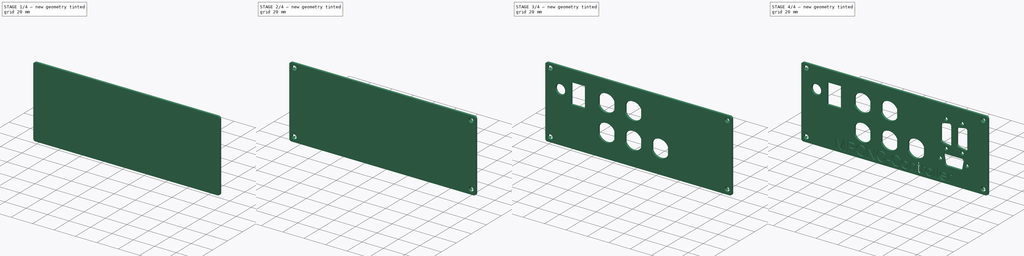
[diagram: build sequence overview — one tinted view per stage of 4, left to right]
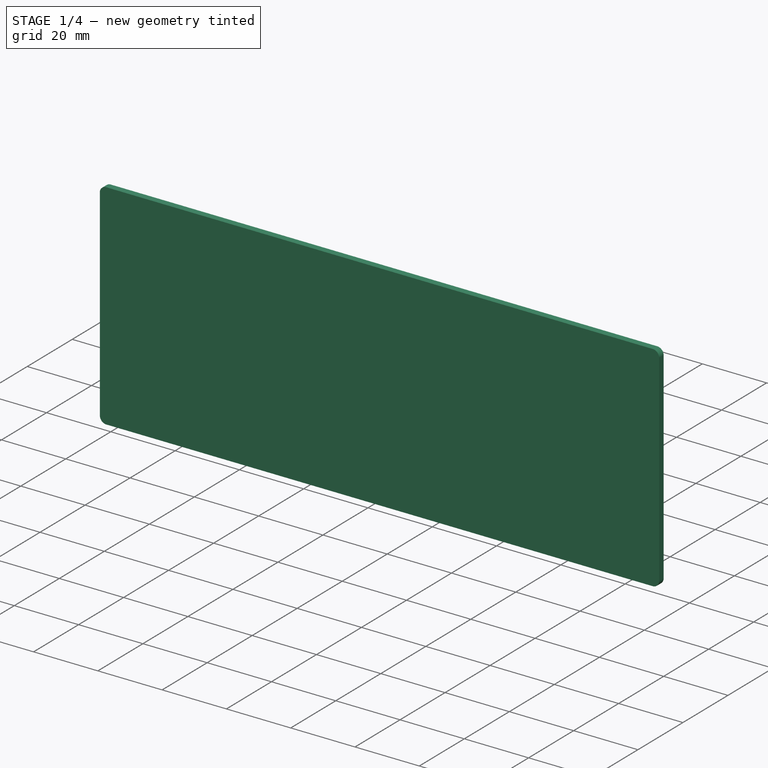
[diagram: stage 1 of 4 — iso view after this stage's code; geometry added in this stage tinted green]
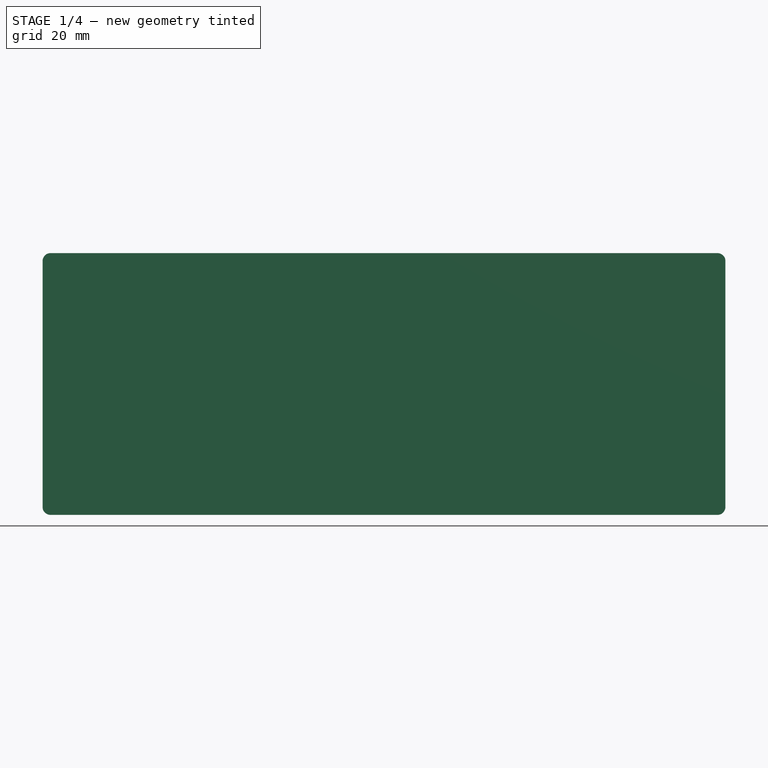
[diagram: stage 1 of 4 — front view after this stage's code; geometry added in this stage tinted green]
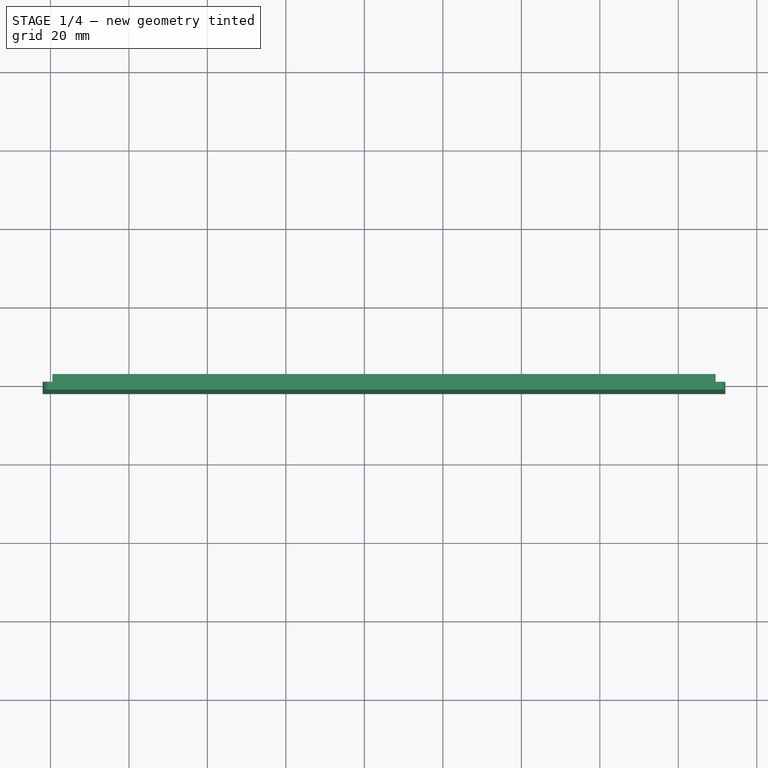
[diagram: stage 1 of 4 — top view after this stage's code; geometry added in this stage tinted green]
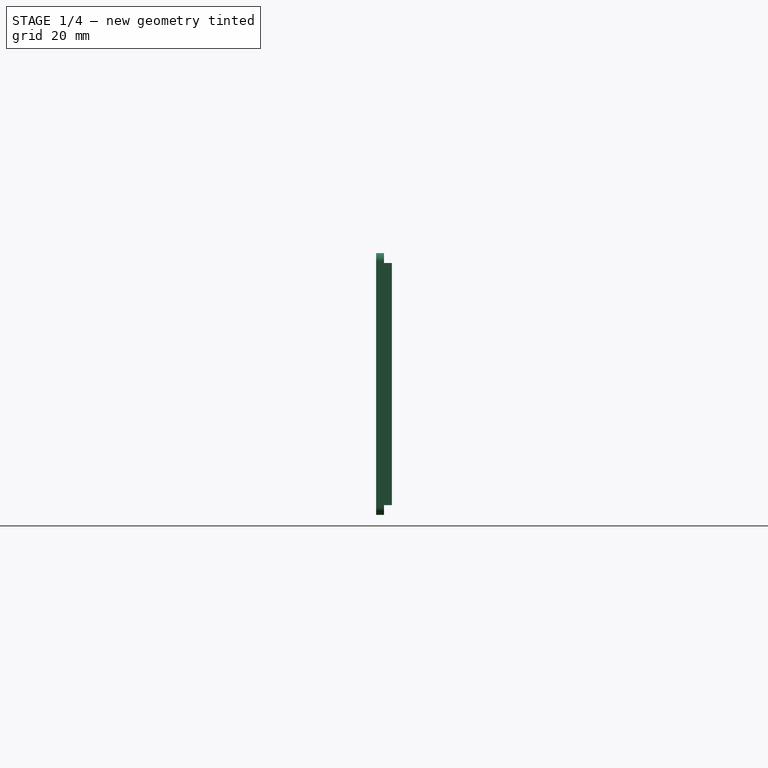
[diagram: stage 1 of 4 — right view after this stage's code; geometry added in this stage tinted green]
FCSTD DOCUMENT  (FreeCAD 0.18R16110 (Git))
Label: MPCNC-Frontplatte
License: All rights reserved
LicenseURL: http://en.wikipedia.org/wiki/All_rights_reserved
objects: Sketcher::SketchObject×6, PartDesign::Pocket×4, Part::FeaturePython×3, PartDesign::Body×3, PartDesign::Pad×2, PartDesign::FeatureBase×2, Part::Feature×1, Part::Box×1, Part::Thickness×1, Part::Cut×1, App::Part×1
note: 30 computed .brp shape members not serialized (recipe doc carries the construction recipe); baked Part::Feature solids carry a one-line shape summary decoded from their .brp

FEATURE [Part::Box] Box001  label="Cube"
  AttacherType = Attacher::AttachEngine3D
  Height = 62.7
  Length = 170
  Placement = pos=(-5,-5,0) rot=(0,0,1;0rad)
  Width = 110
FEATURE [Part::Thickness] Thickness
  Faces = -> Box001 [Face3]
  Intersection = false
  Join = 0
  Mode = 0
  SelfIntersection = false
  Value = 2
FEATURE [Sketcher::SketchObject] Sketch007
  MapMode = 5
  Placement = pos=(0,0,0) rot=(1,0,0;1.5708rad)
  sketch-geometry (8):
    g0: LineSegment StartX=-2 StartY=62.7 StartZ=0 EndX=-2 EndY=0 EndZ=0
    g1: LineSegment StartX=-4e-16 StartY=-2 StartZ=0 EndX=170 EndY=-2 EndZ=0
    g2: LineSegment StartX=172 StartY=-2.5e-15 StartZ=0 EndX=172 EndY=62.7 EndZ=0
    g3: LineSegment StartX=170 StartY=64.7 StartZ=0 EndX=-8.53e-14 EndY=64.7 EndZ=0
    g4: ArcOfCircle CenterX=0 CenterY=0 CenterZ=0 NormalX=0 NormalY=0 NormalZ=1 AngleXU=0 Radius=2 StartAngle=3.14159 EndAngle=4.71239
    g5: ArcOfCircle CenterX=170 CenterY=-2e-15 CenterZ=0 NormalX=0 NormalY=0 NormalZ=1 AngleXU=0 Radius=2 StartAngle=4.71239 EndAngle=6.28319
    g6: ArcOfCircle CenterX=170 CenterY=62.7 CenterZ=0 NormalX=0 NormalY=0 NormalZ=1 AngleXU=0 Radius=2 StartAngle=-1.8e-15 EndAngle=1.5708
    g7: ArcOfCircle CenterX=-9.66e-14 CenterY=62.7 CenterZ=0 NormalX=0 NormalY=0 NormalZ=1 AngleXU=0 Radius=2 StartAngle=1.5708 EndAngle=3.14159
  constraints (19):
    c: Equal(g6,g7)
    c: Radius(g4) = 2
    c: DistanceY(g1,g3) = 66.7
    c: DistanceX(g0,g2) = 174
    c: Coincident(g4,g-1)
    c: Tangent(g1,g4) = -1.5708
    c: Tangent(g0,g4) = -1.5708
    c: Tangent(g3,g6) = -1.5708
    c: Tangent(g2,g6) = -1.5708
    c: Tangent(g1,g5) = -1.5708
    c: Vertical(g2)
    c: Vertical(g0)
    c: Horizontal(g3)
    c: Horizontal(g1)
    c: Tangent(g0,g7) = -1.5708
    c: Tangent(g2,g5) = -1.5708
    c: Tangent(g3,g7) = -1.5708
    c: Equal(g0,g2)
    c: Equal(g3,g1)
FEATURE [PartDesign::Pad] Pad004
  Length = 2
  Length2 = 100
  Placement = pos=(0,0,0) rot=(1,0,0;1.5708rad)
  Profile = -> Sketch007
  Type = 0
  expr: Length = Thickness.Value
FEATURE [Sketcher::SketchObject] Sketch008
  ExternalGeometry = -> [Pad004]
  MapMode = 5
  Placement = pos=(0,1e-16,0) rot=(-1,0,0;1.5708rad)
  Support = -> [Pad004]
  expr: Constraints[11] = Thickness.Value + 0.5mm
  expr: Constraints[10] = Thickness.Value + 0.5mm
  expr: Constraints[8] = Thickness.Value + 0.5mm
  expr: Constraints[9] = Thickness.Value + 0.5mm
  sketch-geometry (4):
    g0: LineSegment StartX=0.5 StartY=-0.5 StartZ=0 EndX=169.5 EndY=-0.5 EndZ=0
    g1: LineSegment StartX=169.5 StartY=-0.5 StartZ=0 EndX=169.5 EndY=-62.2 EndZ=0
    g2: LineSegment StartX=169.5 StartY=-62.2 StartZ=0 EndX=0.5 EndY=-62.2 EndZ=0
    g3: LineSegment StartX=0.5 StartY=-62.2 StartZ=0 EndX=0.5 EndY=-0.5 EndZ=0
  constraints (12):
    c: Coincident(g0,g1)
    c: Coincident(g1,g2)
    c: Coincident(g2,g3)
    c: Coincident(g3,g0)
    c: Horizontal(g0)
    c: Horizontal(g2)
    c: Vertical(g1)
    c: Vertical(g3)
    c: DistanceX(g-4,g0) = 2.5
    c: DistanceY(g0,g-3) = 2.5
    c: DistanceX(g0,g-6) = 2.5
    c: DistanceY(g-5,g2) = 2.5
FEATURE [PartDesign::Pad] Pad005
  BaseFeature = -> Pad004
  Length = 2
  Length2 = 100
  Placement = pos=(0,0,0) rot=(1,0,0;1.5708rad)
  Profile = -> Sketch008
  Type = 0
  expr: Length = Thickness.Value
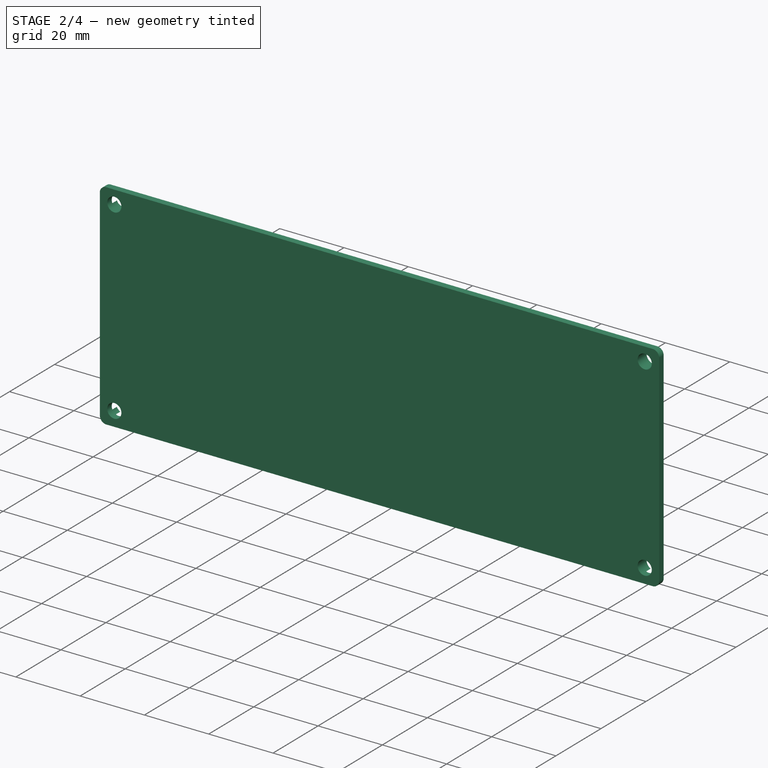
[diagram: stage 2 of 4 — iso view after this stage's code; geometry added in this stage tinted green]
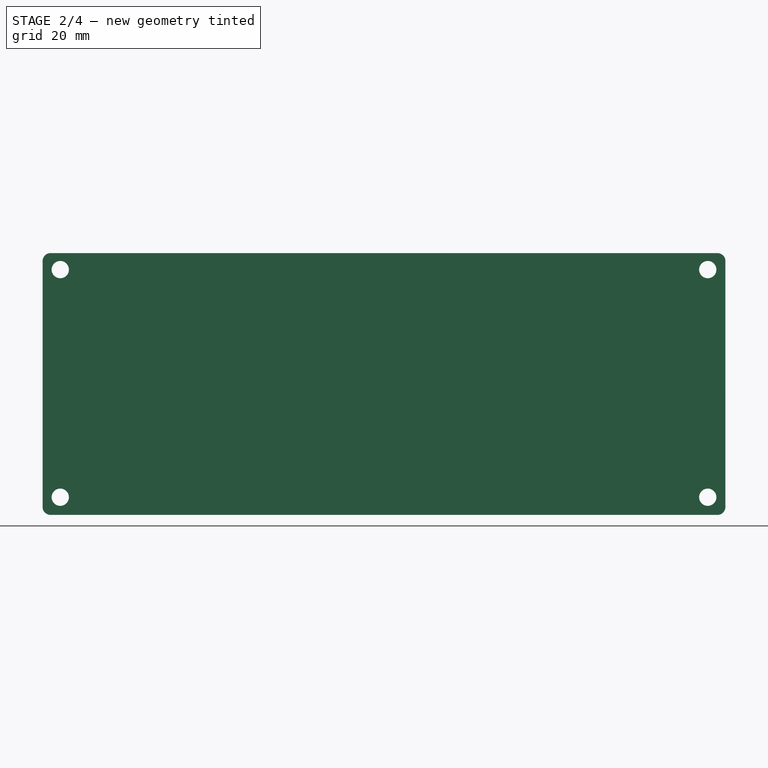
[diagram: stage 2 of 4 — front view after this stage's code; geometry added in this stage tinted green]
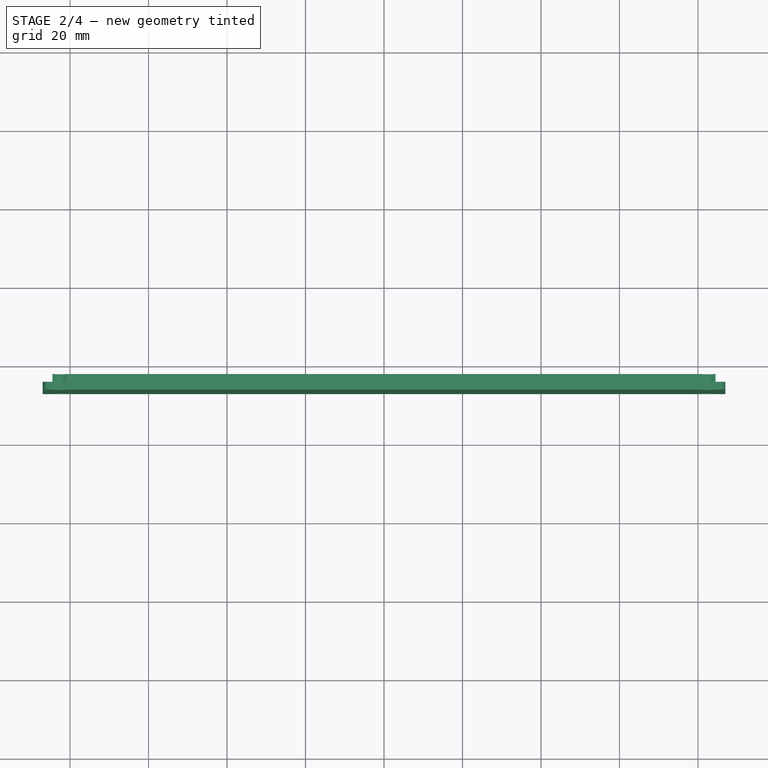
[diagram: stage 2 of 4 — top view after this stage's code; geometry added in this stage tinted green]
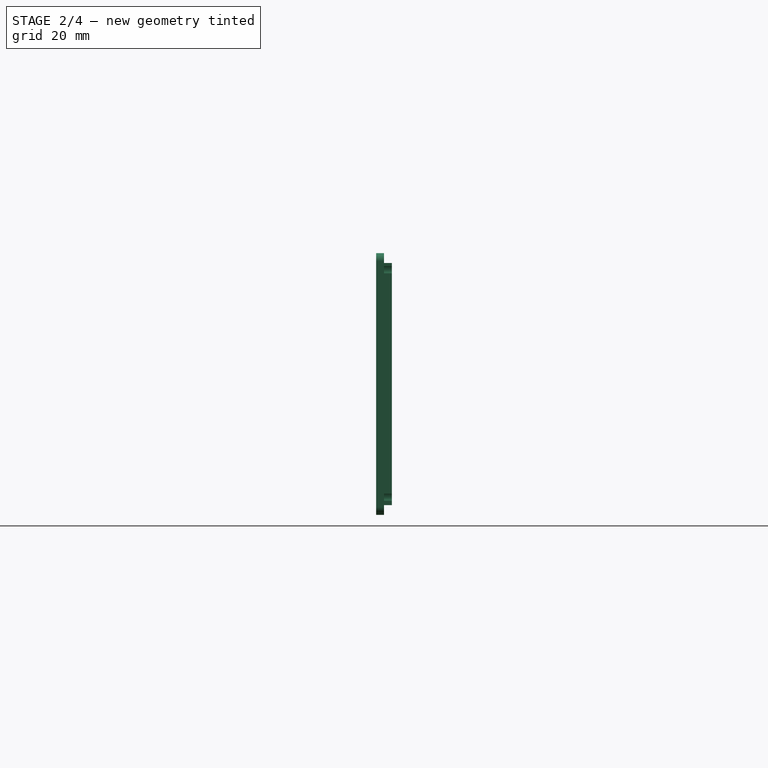
[diagram: stage 2 of 4 — right view after this stage's code; geometry added in this stage tinted green]
FEATURE [Sketcher::SketchObject] Sketch009
  ExternalGeometry = -> [Pad005]
  MapMode = 5
  Placement = pos=(0,-2,9e-16) rot=(1,0,0;1.5708rad)
  Support = -> [Pad005]
  expr: Constraints[11] = Constraints.Schraublochabstand
  expr: Constraints[8] = Constraints.Schraublochabstand
  expr: Constraints[7] = Constraints.Schraublochabstand
  expr: Constraints[10] = Constraints.Schraublochabstand
  expr: Constraints[2] = Constraints.Schraublochabstand
  sketch-geometry (4):
    g0: Circle CenterX=2.5 CenterY=2.5 CenterZ=0 NormalX=0 NormalY=0 NormalZ=1 AngleXU=0 Radius=2.2
    g1: Circle CenterX=2.5 CenterY=60.5 CenterZ=0 NormalX=0 NormalY=0 NormalZ=1 AngleXU=0 Radius=2.2
    g2: Circle CenterX=167.5 CenterY=60.5 CenterZ=0 NormalX=0 NormalY=0 NormalZ=1 AngleXU=0 Radius=2.2
    g3: Circle CenterX=167.5 CenterY=2.5 CenterZ=0 NormalX=0 NormalY=0 NormalZ=1 AngleXU=0 Radius=2.2
  constraints (12):
    c: Radius(g0) = 2.2
    c: DistanceX(g-3,g0) = 4.5  'Schraublochabstand'
    c: DistanceY(g-4,g0) = 4.5
    c: Equal(g0,g3)
    c: Equal(g3,g2)
    c: Equal(g2,g1)
    c: DistanceY(g1,g-5) = 4.2
    c: DistanceX(g-3,g1) = 4.5
    c: DistanceX(g2,g-6) = 4.5
    c: DistanceY(g2,g-5) = 4.2
    c: DistanceY(g-4,g3) = 4.5
    c: DistanceX(g3,g-6) = 4.5
FEATURE [PartDesign::Pocket] Pocket002
  BaseFeature = -> Pad005
  Length = 5
  Length2 = 100
  Placement = pos=(0,0,0) rot=(1,0,0;1.5708rad)
  Profile = -> Sketch009
  Type = 1
FEATURE [Sketcher::SketchObject] Sketch012
  ExternalGeometry = -> [Pocket002]
  MapMode = 5
  Placement = pos=(0,2,-1.8e-15) rot=(-1,0,0;1.5708rad)
  Support = -> [Pocket002]
  expr: Constraints[11] = Constraints.Frontplatteinsertabstand
  expr: Constraints[10] = Constraints.Frontplatteinsertabstand
  expr: Constraints[9] = Constraints.Frontplatteinsertabstand
  sketch-geometry (4):
    g0: LineSegment StartX=5.5 StartY=-5.5 StartZ=0 EndX=164.5 EndY=-5.5 EndZ=0
    g1: LineSegment StartX=164.5 StartY=-5.5 StartZ=0 EndX=164.5 EndY=-57.2 EndZ=0
    g2: LineSegment StartX=164.5 StartY=-57.2 StartZ=0 EndX=5.5 EndY=-57.2 EndZ=0
    g3: LineSegment StartX=5.5 StartY=-57.2 StartZ=0 EndX=5.5 EndY=-5.5 EndZ=0
  constraints (12):
    c: Coincident(g0,g1)
    c: Coincident(g1,g2)
    c: Coincident(g2,g3)
    c: Coincident(g3,g0)
    c: Horizontal(g0)
    c: Horizontal(g2)
    c: Vertical(g1)
    c: Vertical(g3)
    c: DistanceX(g-4,g2) = 5  'Frontplatteinsertabstand'
    c: DistanceY(g-6,g2) = 5
    c: DistanceY(g0,g-3) = 5
    c: DistanceX(g1,g-5) = 5
FEATURE [PartDesign::Pocket] Pocket005
  BaseFeature = -> Pocket002
  Length = 2
  Length2 = 100
  Placement = pos=(0,0,0) rot=(1,0,0;1.5708rad)
  Profile = -> Sketch012
  Type = 0
FEATURE [PartDesign::Body] Body003  label="Grund-Frontplatte"
  Group = -> [Sketch007,Pad004,Sketch008,Pad005,Sketch009,Pocket002,Sketch012,Pocket005]
  Origin = -> Origin008
  Placement = pos=(-5,-5,0) rot=(0,0,1;0rad)
  Tip = -> Pocket005
FEATURE [Part::FeaturePython] Clone049  label="Grund-Frontplatte001"  # Draft clone (typed FeaturePython)
  AttacherType = Attacher::AttachEngine3D
  Fuse = false
  Objects = -> [Body003]
  Placement = pos=(-5,-5,0) rot=(0,0,1;0rad)
  Scale = (1,1,1)
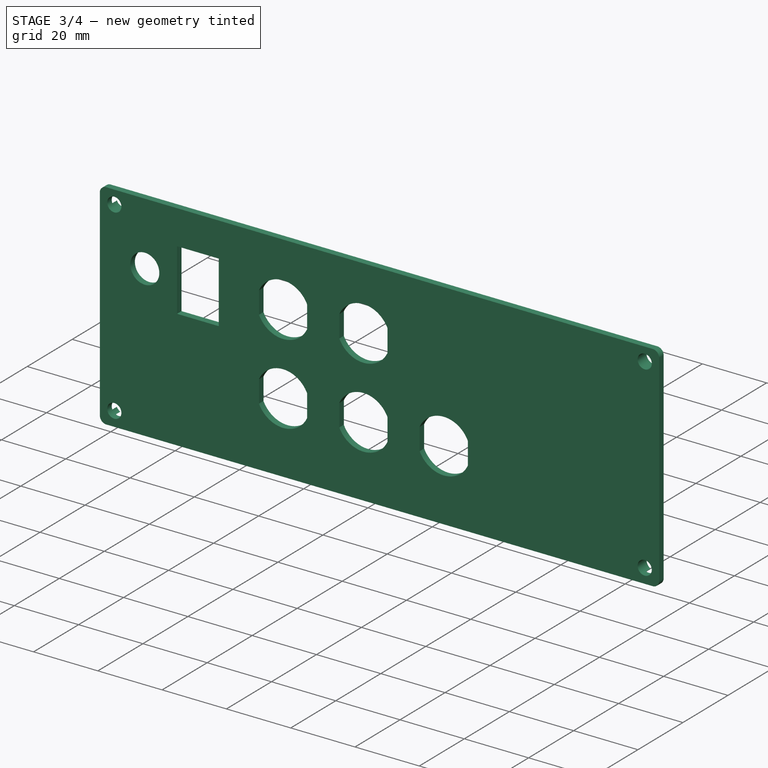
[diagram: stage 3 of 4 — iso view after this stage's code; geometry added in this stage tinted green]
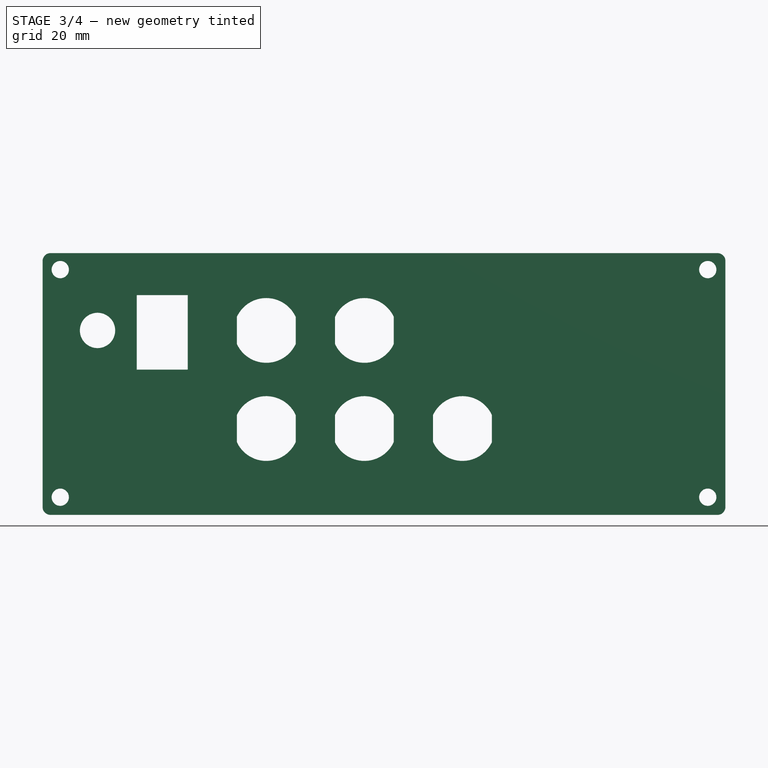
[diagram: stage 3 of 4 — front view after this stage's code; geometry added in this stage tinted green]
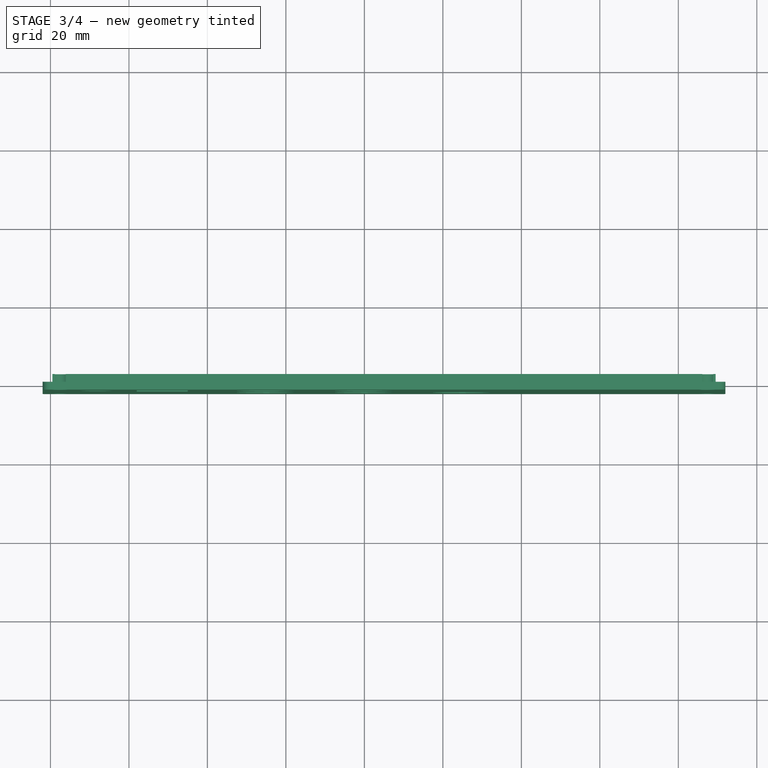
[diagram: stage 3 of 4 — top view after this stage's code; geometry added in this stage tinted green]
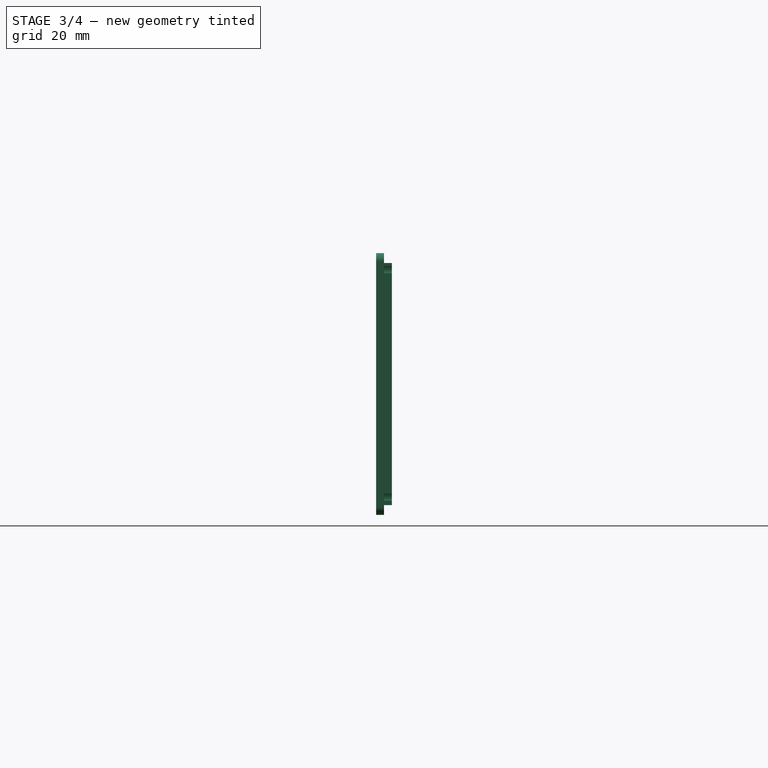
[diagram: stage 3 of 4 — right view after this stage's code; geometry added in this stage tinted green]
FEATURE [PartDesign::FeatureBase] BaseFeature
  BaseFeature = -> Clone049
FEATURE [Sketcher::SketchObject] Sketch010
  MapMode = 5
  Placement = pos=(0,-2,9e-16) rot=(1,0,0;1.5708rad)
  Support = -> [BaseFeature]
  sketch-geometry (35):
    g0: LineSegment StartX=22 StartY=54 StartZ=0 EndX=35 EndY=54 EndZ=0
    g1: LineSegment StartX=35 StartY=54 StartZ=0 EndX=35 EndY=35 EndZ=0
    g2: LineSegment StartX=35 StartY=35 StartZ=0 EndX=22 EndY=35 EndZ=0
    g3: LineSegment StartX=22 StartY=35 StartZ=0 EndX=22 EndY=54 EndZ=0
    g4: Circle CenterX=12 CenterY=45 CenterZ=0 NormalX=0 NormalY=0 NormalZ=1 AngleXU=0 Radius=4.5
    g5: LineSegment [constr] StartX=55 StartY=45 StartZ=0 EndX=105 EndY=45 EndZ=0
    g6: LineSegment [constr] StartX=105 StartY=45 StartZ=0 EndX=105 EndY=20 EndZ=0
    g7: LineSegment [constr] StartX=105 StartY=20 StartZ=0 EndX=55 EndY=20 EndZ=0
    g8: LineSegment [constr] StartX=55 StartY=20 StartZ=0 EndX=55 EndY=45 EndZ=0
    g9: LineSegment [constr] StartX=80 StartY=45 StartZ=0 EndX=80 EndY=20 EndZ=0
    g10: LineSegment StartX=62.5 StartY=23.4369 StartZ=0 EndX=62.5 EndY=16.5631 EndZ=0
    g11: LineSegment StartX=47.5 StartY=23.4369 StartZ=0 EndX=47.5 EndY=16.5631 EndZ=0
    g12: LineSegment [constr] StartX=47.5 StartY=23.4369 StartZ=0 EndX=62.5 EndY=23.4369 EndZ=0
    g13: ArcOfCircle CenterX=55 CenterY=20 CenterZ=0 NormalX=0 NormalY=0 NormalZ=1 AngleXU=0 Radius=8.25 StartAngle=0.4297 EndAngle=2.71189
    g14: ArcOfCircle CenterX=55 CenterY=20 CenterZ=0 NormalX=0 NormalY=0 NormalZ=1 AngleXU=0 Radius=8.25 StartAngle=3.57129 EndAngle=5.85349
    g15: ArcOfCircle CenterX=55 CenterY=45 CenterZ=0 NormalX=0 NormalY=0 NormalZ=1 AngleXU=0 Radius=8.25 StartAngle=3.57129 EndAngle=5.85349
    g16: ArcOfCircle CenterX=55 CenterY=45 CenterZ=0 NormalX=0 NormalY=0 NormalZ=1 AngleXU=0 Radius=8.25 StartAngle=0.4297 EndAngle=2.71189
    g17: LineSegment StartX=47.5 StartY=48.4369 StartZ=0 EndX=47.5 EndY=41.5631 EndZ=0
    g18: LineSegment StartX=62.5 StartY=48.4369 StartZ=0 EndX=62.5 EndY=41.5631 EndZ=0
    g19: LineSegment [constr] StartX=47.5 StartY=48.4369 StartZ=0 EndX=62.5 EndY=48.4369 EndZ=0
    g20: ArcOfCircle CenterX=80 CenterY=20 CenterZ=0 NormalX=0 NormalY=0 NormalZ=1 AngleXU=0 Radius=8.25 StartAngle=0.4297 EndAngle=2.71189
    g21: LineSegment StartX=87.5 StartY=23.4369 StartZ=0 EndX=87.5 EndY=16.5631 EndZ=0
    g22: LineSegment StartX=72.5 StartY=23.4369 StartZ=0 EndX=72.5 EndY=16.5631 EndZ=0
    g23: LineSegment [constr] StartX=72.5 StartY=23.4369 StartZ=0 EndX=87.5 EndY=23.4369 EndZ=0
    g24: ArcOfCircle CenterX=80 CenterY=20 CenterZ=0 NormalX=0 NormalY=0 NormalZ=1 AngleXU=0 Radius=8.25 StartAngle=3.57129 EndAngle=5.85349
    g25: LineSegment StartX=97.5 StartY=23.4369 StartZ=0 EndX=97.5 EndY=16.5631 EndZ=0
    g26: ArcOfCircle CenterX=105 CenterY=20 CenterZ=0 NormalX=0 NormalY=0 NormalZ=1 AngleXU=0 Radius=8.25 StartAngle=0.4297 EndAngle=2.71189
    g27: LineSegment [constr] StartX=97.5 StartY=23.4369 StartZ=0 EndX=112.5 EndY=23.4369 EndZ=0
    g28: LineSegment StartX=112.5 StartY=23.4369 StartZ=0 EndX=112.5 EndY=16.5631 EndZ=0
    g29: ArcOfCircle CenterX=105 CenterY=20 CenterZ=0 NormalX=0 NormalY=0 NormalZ=1 AngleXU=0 Radius=8.25 StartAngle=3.57129 EndAngle=5.85349
    g30: LineSegment StartX=72.5 StartY=48.4369 StartZ=0 EndX=72.5 EndY=41.5631 EndZ=0
    g31: LineSegment [constr] StartX=72.5 StartY=48.4369 StartZ=0 EndX=87.5 EndY=48.4369 EndZ=0
    g32: ArcOfCircle CenterX=80 CenterY=45 CenterZ=0 NormalX=0 NormalY=0 NormalZ=1 AngleXU=0 Radius=8.25 StartAngle=0.4297 EndAngle=2.71189
    g33: LineSegment StartX=87.5 StartY=48.4369 StartZ=0 EndX=87.5 EndY=41.5631 EndZ=0
    g34: ArcOfCircle CenterX=80 CenterY=45 CenterZ=0 NormalX=0 NormalY=0 NormalZ=1 AngleXU=0 Radius=8.25 StartAngle=3.57129 EndAngle=5.85349
  constraints (100):
    c: Coincident(g0,g1)
    c: Coincident(g1,g2)
    c: Coincident(g2,g3)
    c: Coincident(g3,g0)
    c: Horizontal(g0)
    c: Horizontal(g2)
    c: Vertical(g1)
    c: Vertical(g3)
    c: DistanceX(g0,g0) = 13
    c: DistanceY(g1,g1) = 19
    c: Radius(g4) = 4.5
    c: Coincident(g6,g7)
    c: Coincident(g7,g8)
    c: Coincident(g8,g5)
    c: Horizontal(g5)
    c: Horizontal(g7)
    c: Vertical(g6)
    c: Vertical(g8)
    c: DistanceY(g8,g8) = 25
    c: DistanceX(g7,g7) = 50
    c: DistanceX(g2) = 22
    c: DistanceY(g2) = 35
    c: DistanceX(g4) = 12
    c: DistanceY(g4) = 45
    c: Vertical(g10)
    c: Vertical(g11)
    c: Coincident(g12,g11)
    c: Coincident(g12,g10)
    c: Horizontal(g12)
    c: Coincident(g13,g11)
    c: Coincident(g13,g10)
    c: Coincident(g14,g11)
    c: Coincident(g14,g10)
    c: Equal(g13,g14)
    c: Radius(g13) = 8.25
    c: DistanceX(g12,g12) = 15
    c: Coincident(g5,g6)  'mitte'
    c: PointOnObject(g9,g7)
    c: PointOnObject(g9,g5)
    c: Symmetric(g6,g7,g9)
    c: DistanceX(g7) = 55
    c: DistanceY(g7) = 20
    c: Coincident(g13,g14)
    c: Coincident(g13,g7)
    c: Vertical(g18)
    c: Vertical(g17)
    c: Coincident(g19,g17)
    c: Coincident(g19,g18)
    c: Horizontal(g19)
    c: Coincident(g16,g17)
    c: Coincident(g16,g18)
    c: Coincident(g15,g17)
    c: Coincident(g15,g18)
    c: Equal(g16,g15)
    c: Equal(g13,g16) = 8.25
    c: Equal(g12,g19) = 15
    c: Coincident(g16,g15)
    c: Coincident(g15,g5)
    c: Vertical(g21)
    c: Vertical(g22)
    c: Coincident(g23,g22)
    c: Coincident(g23,g21)
    c: Horizontal(g23)
    c: Coincident(g20,g22)
    c: Coincident(g20,g21)
    c: Coincident(g24,g22)
    c: Coincident(g24,g21)
    c: Equal(g20,g24)
    c: Equal(g13,g20) = 8.25
    c: Equal(g12,g23) = 15
    c: Coincident(g20,g24)
    c: Coincident(g20,g9)
    c: Vertical(g28)
    c: Vertical(g25)
    c: Coincident(g27,g25)
    c: Coincident(g27,g28)
    c: Horizontal(g27)
    c: Coincident(g26,g25)
    c: Coincident(g26,g28)
    c: Coincident(g29,g25)
    c: Coincident(g29,g28)
    c: Equal(g26,g29)
    c: Equal(g13,g26) = 8.25
    c: Equal(g12,g27) = 15
    c: Coincident(g26,g29)
    c: Coincident(g26,g6)
    c: Vertical(g33)
    c: Vertical(g30)
    c: Coincident(g31,g30)
    c: Coincident(g31,g33)
    c: Horizontal(g31)
    c: Coincident(g32,g30)
    c: Coincident(g32,g33)
    c: Coincident(g34,g30)
    c: Coincident(g34,g33)
    c: Equal(g32,g34)
    c: Equal(g13,g32) = 8.25
    c: Equal(g12,g31) = 15
    c: Coincident(g32,g34)
    c: Coincident(g32,g9)
FEATURE [PartDesign::Pocket] Pocket003
  BaseFeature = -> BaseFeature
  Length = 5
  Length2 = 100
  Profile = -> Sketch010
  Type = 1
FEATURE [PartDesign::Body] Body004  label="Schalter und GX-16"
  BaseFeature = -> Clone049
  Group = -> [BaseFeature,Sketch010,Pocket003]
  Origin = -> Origin009
  Placement = pos=(-5,-5,0) rot=(0,0,1;0rad)
  Tip = -> Pocket003
FEATURE [Part::FeaturePython] Clone050  label="Klon-Schalter und GX16"  # Draft clone (typed FeaturePython)
  AttacherType = Attacher::AttachEngine3D
  Fuse = false
  Objects = -> [Pocket003]
  Scale = (1,1,1)
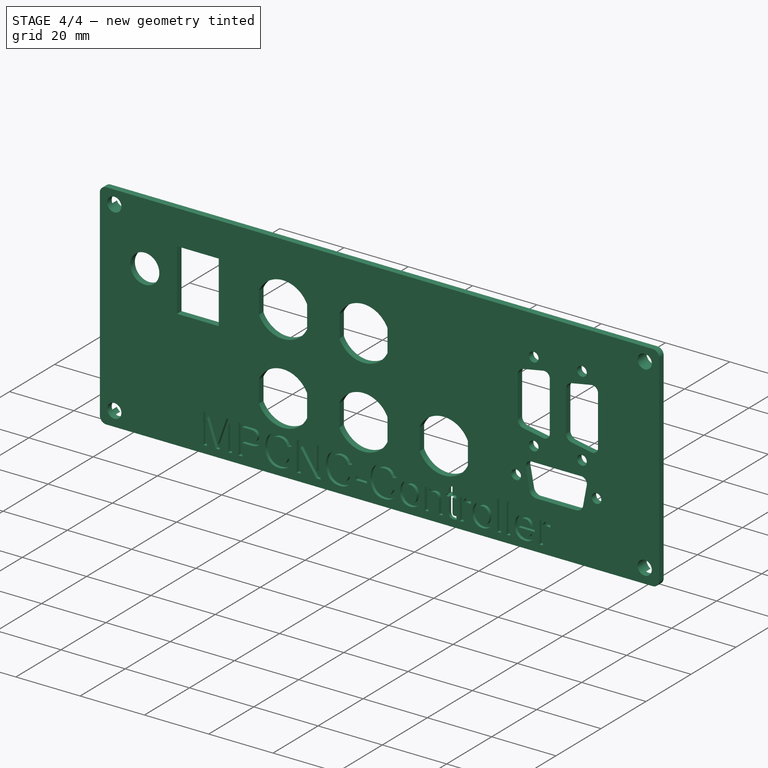
[diagram: stage 4 of 4 — iso view after this stage's code; geometry added in this stage tinted green]
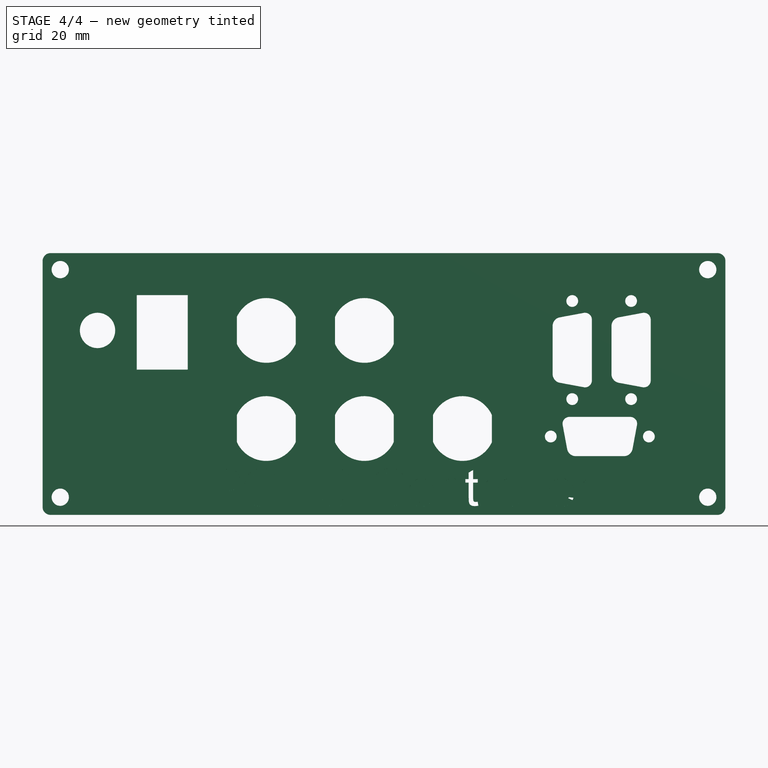
[diagram: stage 4 of 4 — front view after this stage's code; geometry added in this stage tinted green]
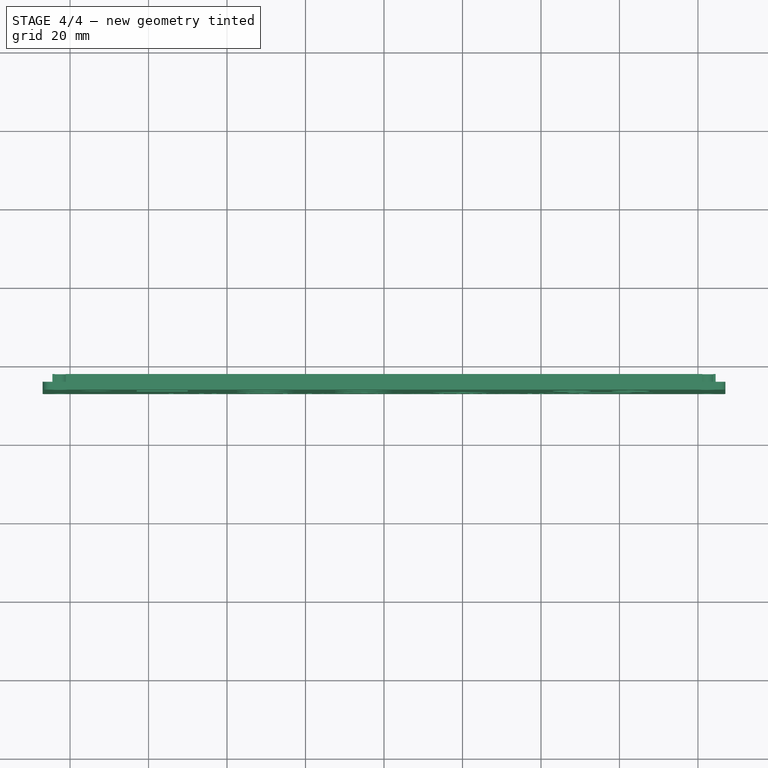
[diagram: stage 4 of 4 — top view after this stage's code; geometry added in this stage tinted green]
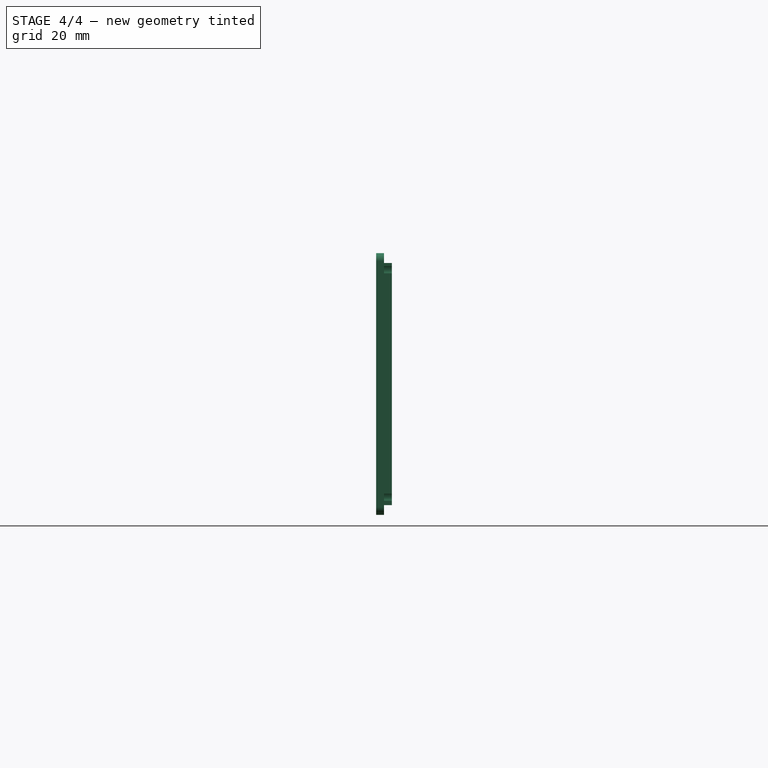
[diagram: stage 4 of 4 — right view after this stage's code; geometry added in this stage tinted green]
FEATURE [Part::Feature] Fusion004011  label="Schrift-Hilfskörper"
  shape: bbox 108.2 x 9.673 x 10 mm, 274 faces, 16 solids (baked)
FEATURE [Part::FeaturePython] Clone051  label="Schrift-Hilfskörper001"  # Draft clone (typed FeaturePython)
  AttacherType = Attacher::AttachEngine3D
  Fuse = false
  Objects = -> [Fusion004011]
  Placement = pos=(25,-6,10) rot=(1,0,0;1.5708rad)
  Scale = (1,1,1)
FEATURE [PartDesign::FeatureBase] BaseFeature001
  BaseFeature = -> Clone050
FEATURE [Sketcher::SketchObject] Sketch011
  MapMode = 5
  Placement = pos=(0,-2,9e-16) rot=(1,0,0;1.5708rad)
  Support = -> [BaseFeature001]
  sketch-geometry (57):
    g0: LineSegment [constr] StartX=127.5 StartY=22.967 StartZ=0 EndX=152.5 EndY=22.967 EndZ=0
    g1: LineSegment [constr] StartX=152.5 StartY=22.967 StartZ=0 EndX=152.5 EndY=12.967 EndZ=0
    g2: LineSegment [constr] StartX=152.5 StartY=12.967 StartZ=0 EndX=127.5 EndY=12.967 EndZ=0
    g3: LineSegment [constr] StartX=127.5 StartY=12.967 StartZ=0 EndX=127.5 EndY=22.967 EndZ=0
    g4: LineSegment [constr] StartX=127.5 StartY=17.967 StartZ=0 EndX=152.5 EndY=17.967 EndZ=0
    g5: LineSegment [constr] StartX=140 StartY=22.967 StartZ=0 EndX=140 EndY=12.967 EndZ=0
    g6: LineSegment StartX=130.53 StartY=20.8968 StartZ=0 EndX=131.663 EndY=14.8054 EndZ=0
    g7: LineSegment StartX=149.47 StartY=20.8968 StartZ=0 EndX=148.337 EndY=14.8054 EndZ=0
    g8: LineSegment StartX=133.875 StartY=12.967 StartZ=0 EndX=146.125 EndY=12.967 EndZ=0
    g9: LineSegment StartX=132.25 StartY=22.967 StartZ=0 EndX=147.75 EndY=22.967 EndZ=0
    g10: ArcOfCircle CenterX=132.25 CenterY=21.217 CenterZ=0 NormalX=0 NormalY=0 NormalZ=1 AngleXU=0 Radius=1.75 StartAngle=1.5708 EndAngle=3.32556
    g11: ArcOfCircle CenterX=147.75 CenterY=21.217 CenterZ=0 NormalX=0 NormalY=0 NormalZ=1 AngleXU=0 Radius=1.75 StartAngle=6.09922 EndAngle=7.85398
    g12: ArcOfCircle CenterX=146.125 CenterY=15.217 CenterZ=0 NormalX=0 NormalY=0 NormalZ=1 AngleXU=0 Radius=2.25 StartAngle=4.71239 EndAngle=6.09922
    g13: ArcOfCircle CenterX=133.875 CenterY=15.217 CenterZ=0 NormalX=0 NormalY=0 NormalZ=1 AngleXU=0 Radius=2.25 StartAngle=3.32556 EndAngle=4.71239
    g14: LineSegment [constr] StartX=131.663 StartY=14.8054 StartZ=0 EndX=140 EndY=-30 EndZ=0
    g15: LineSegment [constr] StartX=148.337 StartY=14.8054 StartZ=0 EndX=140 EndY=-30 EndZ=0
    g16: LineSegment [constr] StartX=140 StartY=12.967 StartZ=0 EndX=140 EndY=-30 EndZ=0
    g17: Circle CenterX=127.5 CenterY=17.967 CenterZ=0 NormalX=0 NormalY=0 NormalZ=1 AngleXU=0 Radius=1.5
    g18: Circle CenterX=152.5 CenterY=17.967 CenterZ=0 NormalX=0 NormalY=0 NormalZ=1 AngleXU=0 Radius=1.5
    g19: LineSegment [constr] StartX=137.968 StartY=52.5 StartZ=0 EndX=137.968 EndY=27.5 EndZ=0
    g20: LineSegment [constr] StartX=137.968 StartY=27.5 StartZ=0 EndX=127.968 EndY=27.5 EndZ=0
    g21: LineSegment [constr] StartX=127.968 StartY=27.5 StartZ=0 EndX=127.968 EndY=52.5 EndZ=0
    g22: LineSegment [constr] StartX=127.968 StartY=52.5 StartZ=0 EndX=137.968 EndY=52.5 EndZ=0
    g23: LineSegment [constr] StartX=132.968 StartY=52.5 StartZ=0 EndX=132.968 EndY=27.5 EndZ=0
    g24: LineSegment [constr] StartX=137.968 StartY=40 StartZ=0 EndX=127.968 EndY=40 EndZ=0
    g25: LineSegment StartX=135.897 StartY=49.4705 StartZ=0 EndX=129.806 EndY=48.337 EndZ=0
    g26: LineSegment StartX=135.897 StartY=30.5295 StartZ=0 EndX=129.806 EndY=31.663 EndZ=0
    g27: LineSegment StartX=127.968 StartY=46.125 StartZ=0 EndX=127.968 EndY=33.875 EndZ=0
    g28: LineSegment StartX=137.968 StartY=47.75 StartZ=0 EndX=137.968 EndY=32.25 EndZ=0
    g29: ArcOfCircle CenterX=136.218 CenterY=47.75 CenterZ=0 NormalX=0 NormalY=0 NormalZ=1 AngleXU=0 Radius=1.75 StartAngle=2.1e-15 EndAngle=1.75476
    g30: ArcOfCircle CenterX=136.218 CenterY=32.25 CenterZ=0 NormalX=0 NormalY=0 NormalZ=1 AngleXU=0 Radius=1.75 StartAngle=4.52842 EndAngle=6.28319
    g31: ArcOfCircle CenterX=130.218 CenterY=33.875 CenterZ=0 NormalX=0 NormalY=0 NormalZ=1 AngleXU=0 Radius=2.25 StartAngle=3.14159 EndAngle=4.52842
    g32: ArcOfCircle CenterX=130.218 CenterY=46.125 CenterZ=0 NormalX=0 NormalY=0 NormalZ=1 AngleXU=0 Radius=2.25 StartAngle=1.75476 EndAngle=3.14159
    g33: LineSegment [constr] StartX=129.806 StartY=48.337 StartZ=0 EndX=85 EndY=40 EndZ=0
    g34: LineSegment [constr] StartX=129.806 StartY=31.663 StartZ=0 EndX=85 EndY=40 EndZ=0
    g35: LineSegment [constr] StartX=127.968 StartY=40 StartZ=0 EndX=85 EndY=40 EndZ=0
    g36: Circle CenterX=132.968 CenterY=52.5 CenterZ=0 NormalX=0 NormalY=0 NormalZ=1 AngleXU=0 Radius=1.5
    g37: Circle CenterX=132.968 CenterY=27.5 CenterZ=0 NormalX=0 NormalY=0 NormalZ=1 AngleXU=0 Radius=1.5
    g38: LineSegment [constr] StartX=152.968 StartY=52.5 StartZ=0 EndX=152.968 EndY=27.5 EndZ=0
    g39: LineSegment [constr] StartX=152.968 StartY=27.5 StartZ=0 EndX=142.968 EndY=27.5 EndZ=0
    g40: LineSegment [constr] StartX=142.968 StartY=27.5 StartZ=0 EndX=142.968 EndY=52.5 EndZ=0
    g41: LineSegment [constr] StartX=142.968 StartY=52.5 StartZ=0 EndX=152.968 EndY=52.5 EndZ=0
    g42: LineSegment [constr] StartX=147.968 StartY=52.5 StartZ=0 EndX=147.968 EndY=27.5 EndZ=0
    g43: LineSegment [constr] StartX=152.968 StartY=40 StartZ=0 EndX=142.968 EndY=40 EndZ=0
    g44: LineSegment StartX=150.897 StartY=49.4705 StartZ=0 EndX=144.806 EndY=48.337 EndZ=0
    g45: LineSegment StartX=150.897 StartY=30.5295 StartZ=0 EndX=144.806 EndY=31.663 EndZ=0
    g46: LineSegment StartX=142.968 StartY=46.125 StartZ=0 EndX=142.968 EndY=33.875 EndZ=0
    g47: LineSegment StartX=152.968 StartY=47.75 StartZ=0 EndX=152.968 EndY=32.25 EndZ=0
    g48: ArcOfCircle CenterX=151.218 CenterY=47.75 CenterZ=0 NormalX=0 NormalY=0 NormalZ=1 AngleXU=0 Radius=1.75 StartAngle=5e-16 EndAngle=1.75476
    g49: ArcOfCircle CenterX=151.218 CenterY=32.25 CenterZ=0 NormalX=0 NormalY=0 NormalZ=1 AngleXU=0 Radius=1.75 StartAngle=4.52842 EndAngle=6.28319
    g50: ArcOfCircle CenterX=145.218 CenterY=33.875 CenterZ=0 NormalX=0 NormalY=0 NormalZ=1 AngleXU=0 Radius=2.25 StartAngle=3.14159 EndAngle=4.52842
    g51: ArcOfCircle CenterX=145.218 CenterY=46.125 CenterZ=0 NormalX=0 NormalY=0 NormalZ=1 AngleXU=0 Radius=2.25 StartAngle=1.75476 EndAngle=3.14159
    g52: LineSegment [constr] StartX=144.806 StartY=48.337 StartZ=0 EndX=100 EndY=40 EndZ=0
    g53: LineSegment [constr] StartX=144.806 StartY=31.663 StartZ=0 EndX=100 EndY=40 EndZ=0
    g54: LineSegment [constr] StartX=142.968 StartY=40 StartZ=0 EndX=100 EndY=40 EndZ=0
    g55: Circle CenterX=147.968 CenterY=52.5 CenterZ=0 NormalX=0 NormalY=0 NormalZ=1 AngleXU=0 Radius=1.5
    g56: Circle CenterX=147.968 CenterY=27.5 CenterZ=0 NormalX=0 NormalY=0 NormalZ=1 AngleXU=0 Radius=1.5
  constraints (144):
    c: Coincident(g0,g1)
    c: Coincident(g1,g2)
    c: Coincident(g2,g3)
    c: Coincident(g3,g0)
    c: PointOnObject(g4,g3)
    c: PointOnObject(g4,g1)
    c: Symmetric(g2,g0,g4)
    c: PointOnObject(g5,g0)
    c: PointOnObject(g5,g2)
    c: Symmetric(g0,g0,g5)
    c: PointOnObject(g8,g2)
    c: PointOnObject(g9,g0)
    c: Tangent(g10,g9) = 1.5708
    c: Tangent(g11,g9) = 1.5708
    c: Tangent(g12,g8) = -1.5708
    c: Tangent(g13,g8) = -1.5708
    c: Symmetric(g8,g8,g5)
    c: Equal(g13,g12)
    c: Equal(g10,g11)
    c: Tangent(g13,g6) = -1.5708
    c: Tangent(g7,g12) = 1.5708
    c: Tangent(g10,g6) = -1.5708
    c: Tangent(g11,g7) = 1.5708
    c: Radius(g10) = 1.75
    c: Radius(g13) = 2.25
    c: Coincident(g14,g6)
    c: Tangent(g14,g13)
    c: Coincident(g15,g7)
    c: Coincident(g15,g14)
    c: Parallel(g15,g7)
    c: Coincident(g16,g5)
    c: Coincident(g16,g14)
    c: Coincident(g17,g4)
    c: Coincident(g18,g4)
    c: Equal(g18,g17)
    c: Radius(g17) = 1.5  'dsub-schraublöcher'
    c: Angle(g2,g3) = 1.5708
    c: Angle(g3,g0) = 1.5708
    c: Angle(g1,g2) = 1.5708
    c: Angle(g5,g16) = 3.14159
    c: PointOnObject(g9,g0)
    c: Distance(g8,g8) = 12.25
    c: Distance(g9) = 15.5
    c: Distance(g0) = 25
    c: Distance(g1) = 10
    c: Horizontal(g9)  'Waagerechter-Stecker'
    c: Coincident(g19,g20)
    c: Coincident(g20,g21)
    c: Coincident(g21,g22)
    c: Coincident(g22,g19)
    c: PointOnObject(g23,g22)
    c: PointOnObject(g23,g20)
    c: Symmetric(g21,g19,g23)
    c: PointOnObject(g24,g19)
    c: PointOnObject(g24,g21)
    c: Symmetric(g19,g19,g24)
    c: PointOnObject(g27,g21)
    c: PointOnObject(g28,g19)
    c: Tangent(g29,g28) = 1.5708
    c: Tangent(g30,g28) = 1.5708
    c: Tangent(g31,g27) = -1.5708
    c: Tangent(g32,g27) = -1.5708
    c: Symmetric(g27,g27,g24)
    c: Equal(g32,g31)
    c: Equal(g29,g30)
    c: Tangent(g32,g25) = -1.5708
    c: Tangent(g26,g31) = 1.5708
    c: Tangent(g29,g25) = -1.5708
    c: Tangent(g30,g26) = 1.5708
    c: Equal(g10,g29) = 1.75
    c: Equal(g13,g32) = 2.25
    c: Coincident(g33,g25)
    c: Tangent(g33,g32)
    c: Coincident(g34,g26)
    c: Coincident(g34,g33)
    c: Parallel(g34,g26)
    c: Coincident(g35,g24)
    c: Coincident(g35,g33)
    c: Coincident(g36,g23)
    c: Coincident(g37,g23)
    c: Equal(g37,g36)
    c: Equal(g17,g36) = 2.5
    c: Angle(g21,g22) = 1.5708
    c: Angle(g22,g19) = 1.5708
    c: Angle(g20,g21) = 1.5708
    c: Angle(g24,g35) = 3.14159
    c: PointOnObject(g28,g19)
    c: Equal(g8,g27) = 12.25
    c: Equal(g9,g28) = 15.5
    c: Equal(g0,g19) = 25
    c: Equal(g1,g20) = 10
    c: Horizontal(g35)
    c: Coincident(g38,g39)
    c: Coincident(g39,g40)
    c: Coincident(g40,g41)
    c: Coincident(g41,g38)
    c: PointOnObject(g42,g41)
    c: PointOnObject(g42,g39)
    c: Symmetric(g40,g38,g42)
    c: PointOnObject(g43,g38)
    c: PointOnObject(g43,g40)
    c: Symmetric(g38,g38,g43)
    c: PointOnObject(g46,g40)
    c: PointOnObject(g47,g38)
    c: Tangent(g48,g47) = 1.5708
    c: Tangent(g49,g47) = 1.5708
    c: Tangent(g50,g46) = -1.5708
    c: Tangent(g51,g46) = -1.5708
    c: Symmetric(g46,g46,g43)
    c: Equal(g51,g50)
    c: Equal(g48,g49)
    c: Tangent(g51,g44) = -1.5708
    c: Tangent(g45,g50) = 1.5708
    c: Tangent(g48,g44) = -1.5708
    c: Tangent(g49,g45) = 1.5708
    c: Equal(g10,g48) = 1.75
    c: Equal(g13,g51) = 2.25
    c: Coincident(g52,g44)
    c: Tangent(g52,g51)
    c: Coincident(g53,g45)
    c: Coincident(g53,g52)
    c: Parallel(g53,g45)
    c: Coincident(g54,g43)
    c: Coincident(g54,g52)
    c: Coincident(g55,g42)
    c: Coincident(g56,g42)
    c: Equal(g56,g55)
    c: Equal(g17,g55) = 2.5
    c: Angle(g40,g41) = 1.5708
    c: Angle(g41,g38) = 1.5708
    c: Angle(g39,g40) = 1.5708
    c: Angle(g43,g54) = 3.14159
    c: PointOnObject(g47,g38)
    c: Equal(g8,g46) = 12.25
    c: Equal(g9,g47) = 15.5
    c: Equal(g0,g38) = 25
    c: Equal(g1,g39) = 10
    c: Horizontal(g54)
    c: PointOnObject(g52,g35)
    c: Distance(g52,g33) = 15
    c: DistanceX(g33) = 85
    c: DistanceY(g33) = 40
    c: DistanceY(g14) = -30
    c: DistanceX(g14) = 140
FEATURE [PartDesign::Pocket] Pocket004
  BaseFeature = -> BaseFeature001
  Length = 5
  Length2 = 100
  Profile = -> Sketch011
  Type = 1
FEATURE [PartDesign::Body] Body005  label="D-Sub-Löcher"
  BaseFeature = -> Clone050
  Group = -> [BaseFeature001,Sketch011,Pocket004]
  Origin = -> Origin010
  Placement = pos=(-5,-5,0) rot=(0,0,1;0rad)
  Tip = -> Pocket004
FEATURE [Part::Cut] Cut001018  label="Frontplatte-Komplett"
  Base = -> Body005
  Tool = -> Clone051
FEATURE [App::Part] Part004  label="Frontplatte"
  Group = -> [Body003,Clone049,Body004,Clone050,Body005,Clone051,Cut001018]
  Origin = -> Origin007
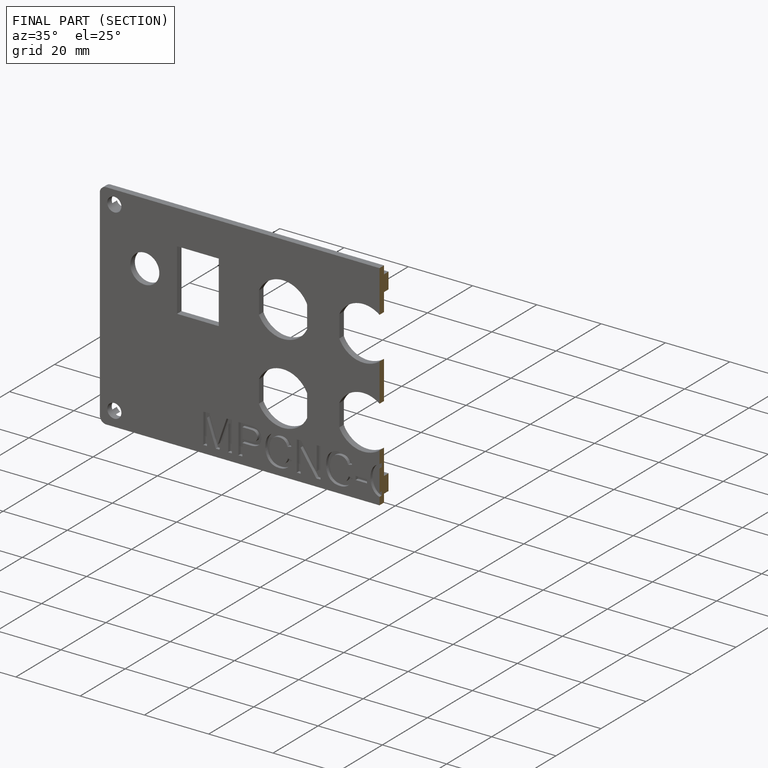
[diagram: finished part — half-section view (interior)]
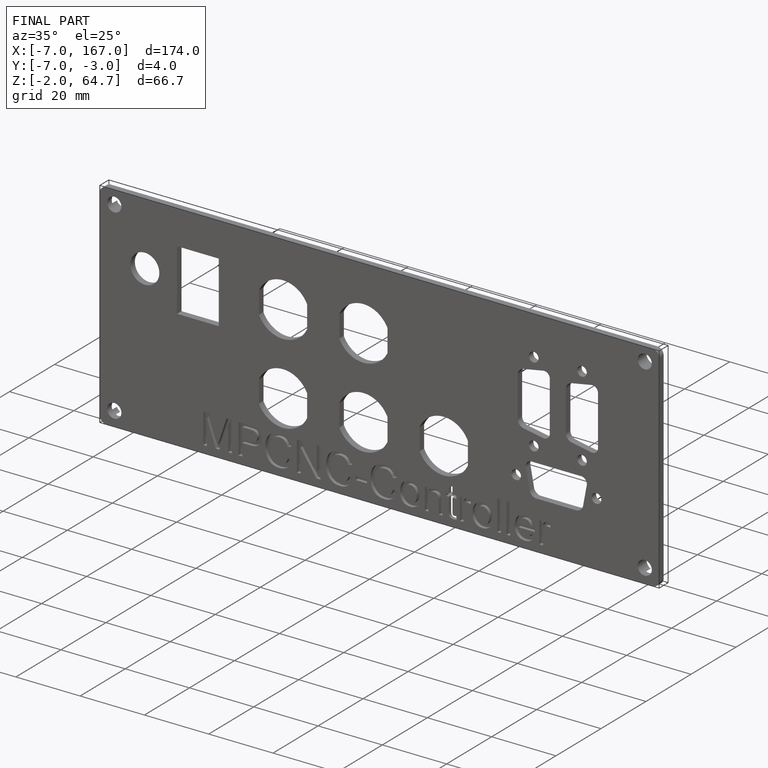
[diagram: finished part — iso view with bounding-box wireframe]
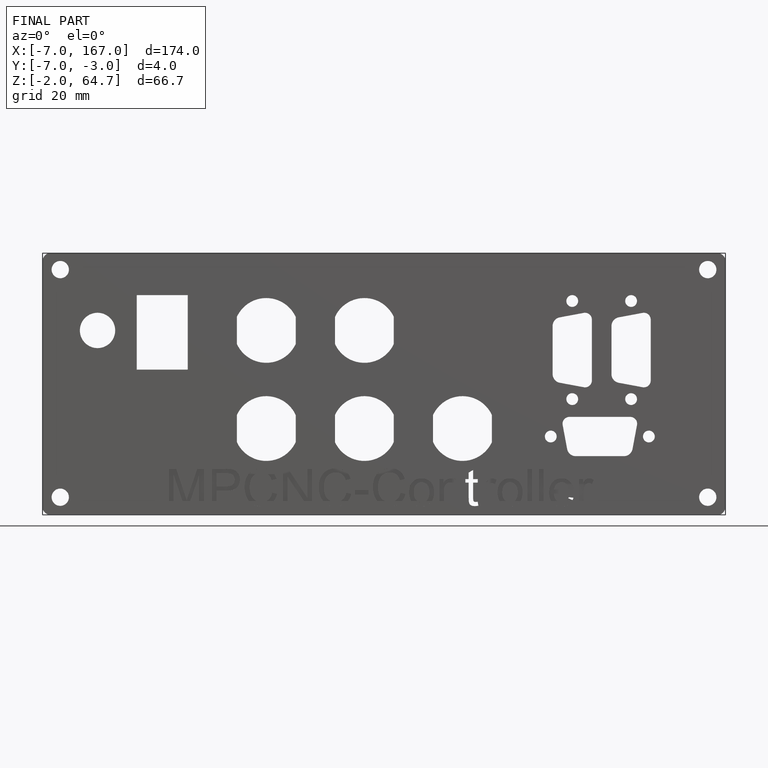
[diagram: finished part — front view with bounding-box wireframe]
